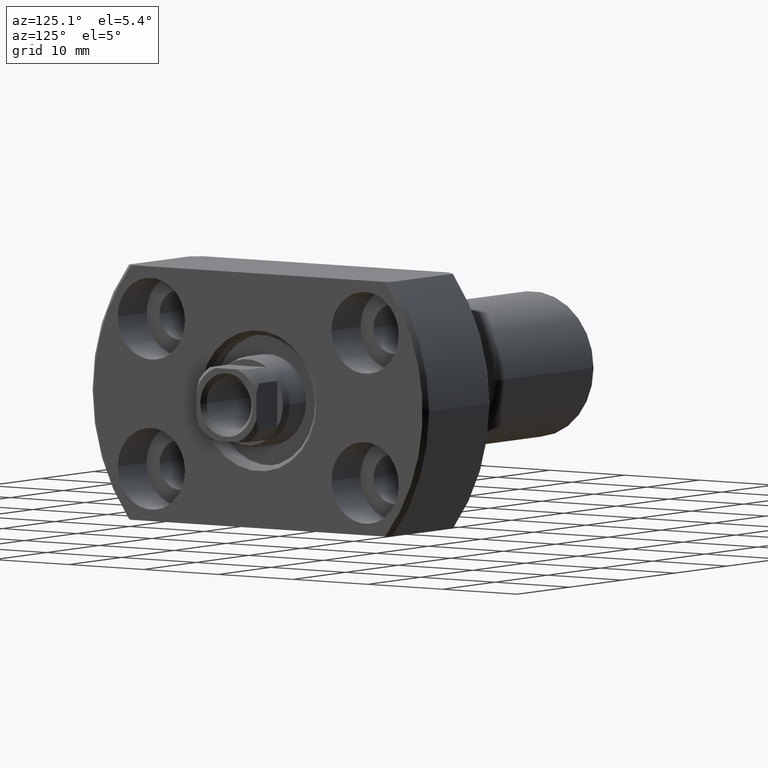
[diagram: clean part render]
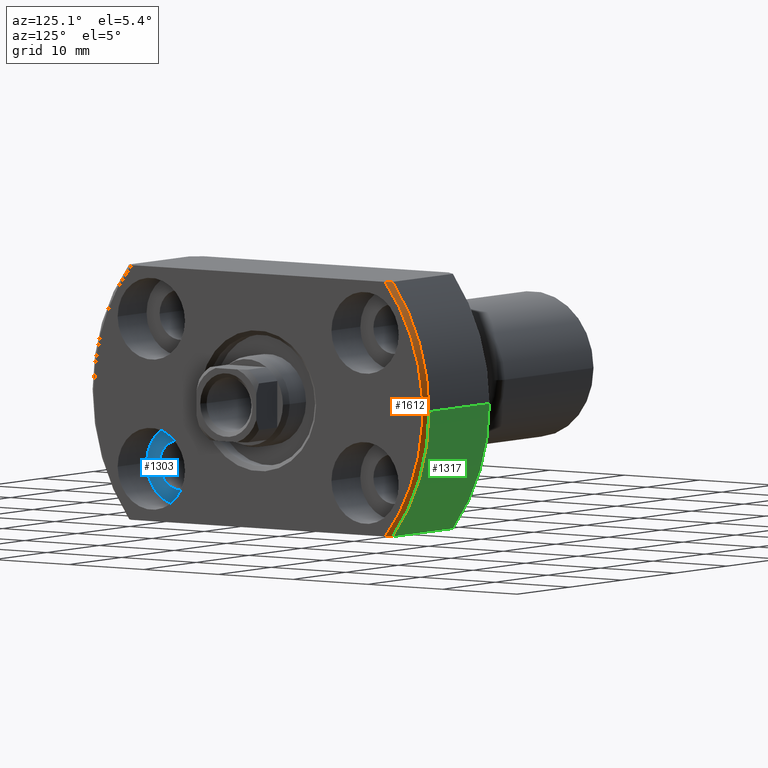
[diagram: same view with three faces highlighted in distinct colors, each labeled with its STEP entity id]
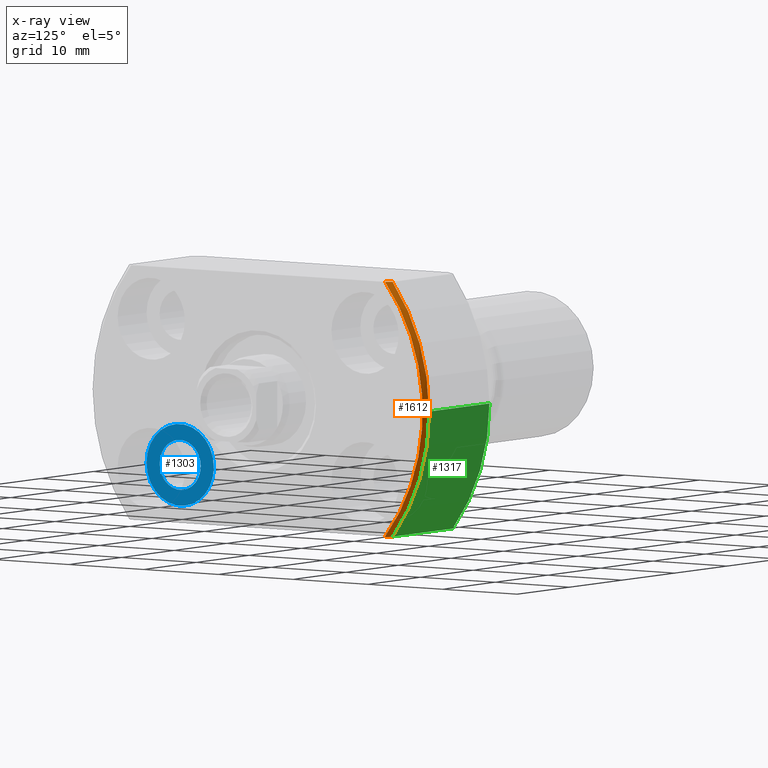
[diagram: x-ray of the same camera — body ghosted, the three highlighted faces saturated]
A machine part, auxiliary view with three faces highlighted in distinct colors.
The next image is the same camera in x-ray (body ghosted, the three faces saturated) — at least one of them is partly hidden behind the body in this view.
Their STEP definitions:

[orange] entity #1612 — the highlighted conical surface has half-angle 45 deg.
#12 = CARTESIAN_POINT ( 'NONE',  ( 24.00000000000008882, 22.49999999999991118, 0.000000000000000000 ) ) ;
#231 = CARTESIAN_POINT ( 'NONE',  ( 24.16739802011472449, 17.40008086510889740, -14.00000000000000355 ) ) ;
#249 = CARTESIAN_POINT ( 'NONE',  ( 24.00000000000008882, 1.199654007330677296E-17, 0.000000000000000000 ) ) ;
#301 = VERTEX_POINT ( 'NONE', #1903 ) ;
#303 = B_SPLINE_CURVE_WITH_KNOTS ( 'NONE', 3,
 ( #2507, #2000, #1772, #1026 ),
 .UNSPECIFIED., .F., .F.,
 ( 4, 4 ),
 ( 0.06706314534022636553, 0.06787700449519981638 ),
 .UNSPECIFIED. ) ;
#358 = ORIENTED_EDGE ( 'NONE', *, *, #2686, .T. ) ;
#557 = DIRECTION ( 'NONE',  ( -1.000000000000000000, -4.998558363877804092E-19, 0.000000000000000000 ) ) ;
#569 = FACE_OUTER_BOUND ( 'NONE', #1768, .T. ) ;
#725 = CARTESIAN_POINT ( 'NONE',  ( 24.33408568434172992, 17.18564783425659925, -14.00000000000000355 ) ) ;
#812 = DIRECTION ( 'NONE',  ( 1.000000000000000000, 4.998558363877804092E-19, -0.000000000000000000 ) ) ;
#994 = ORIENTED_EDGE ( 'NONE', *, *, #2922, .T. ) ;
#997 = DIRECTION ( 'NONE',  ( 1.000000000000000000, 4.998558363877804092E-19, -0.000000000000000000 ) ) ;
#1026 = CARTESIAN_POINT ( 'NONE',  ( 24.00000000000007461, 17.61391495380845029, 13.99999999999999645 ) ) ;
#1070 = AXIS2_PLACEMENT_3D ( 'NONE', #1443, #997, #1474 ) ;
#1206 = CARTESIAN_POINT ( 'NONE',  ( 24.50000000000000000, 16.97056274847713553, 14.00000000000000355 ) ) ;
#1321 = DIRECTION ( 'NONE',  ( 0.000000000000000000, 1.000000000000000000, 0.000000000000000000 ) ) ;
#1424 = EDGE_CURVE ( 'NONE', #2137, #301, #303, .T. ) ;
#1443 = CARTESIAN_POINT ( 'NONE',  ( 24.00000000000008882, 1.199654007330677296E-17, 0.000000000000000000 ) ) ;
#1474 = DIRECTION ( 'NONE',  ( 0.000000000000000000, 1.000000000000000000, 0.000000000000000000 ) ) ;
#1546 = CONICAL_SURFACE ( 'NONE', #2818, 22.49999999999991473, 0.7853981633974518317 ) ;
#1558 = DIRECTION ( 'NONE',  ( 1.000000000000000000, 4.998558363877804092E-19, -0.000000000000000000 ) ) ;
#1612 = ADVANCED_FACE ( 'NONE', ( #569 ), #1546, .T. ) ;
#1638 = CIRCLE ( 'NONE', #1941, 22.00000000000000000 ) ;
#1733 = ORIENTED_EDGE ( 'NONE', *, *, #3104, .T. ) ;
#1768 = EDGE_LOOP ( 'NONE', ( #3146, #2702, #1733, #994, #358 ) ) ;
#1772 = CARTESIAN_POINT ( 'NONE',  ( 24.16739802011472449, 17.40008086510889740, 14.00000000000000355 ) ) ;
#1797 = CIRCLE ( 'NONE', #2778, 22.49999999999991473 ) ;
#1903 = CARTESIAN_POINT ( 'NONE',  ( 24.00000000000007461, 17.61391495380845029, 13.99999999999999645 ) ) ;
#1914 = EDGE_CURVE ( 'NONE', #2900, #2137, #1638, .T. ) ;
#1941 = AXIS2_PLACEMENT_3D ( 'NONE', #3062, #812, #1321 ) ;
#1952 = CIRCLE ( 'NONE', #1070, 22.49999999999991473 ) ;
#2000 = CARTESIAN_POINT ( 'NONE',  ( 24.33408568434172992, 17.18564783425659925, 14.00000000000000355 ) ) ;
#2104 = CARTESIAN_POINT ( 'NONE',  ( 24.00000000000008882, 1.199654007330677296E-17, 0.000000000000000000 ) ) ;
#2137 = VERTEX_POINT ( 'NONE', #1206 ) ;
#2208 = CARTESIAN_POINT ( 'NONE',  ( 24.50000000000000000, 16.97056274847713553, -14.00000000000000355 ) ) ;
#2245 = CARTESIAN_POINT ( 'NONE',  ( 24.50000000000000000, 16.97056274847713553, -14.00000000000000355 ) ) ;
#2385 = VERTEX_POINT ( 'NONE', #12 ) ;
#2492 = B_SPLINE_CURVE_WITH_KNOTS ( 'NONE', 3,
 ( #2208, #725, #231, #2988 ),
 .UNSPECIFIED., .F., .F.,
 ( 4, 4 ),
 ( 0.06706314534022636553, 0.06787700449519981638 ),
 .UNSPECIFIED. ) ;
#2507 = CARTESIAN_POINT ( 'NONE',  ( 24.50000000000000000, 16.97056274847713553, 14.00000000000000355 ) ) ;
#2686 = EDGE_CURVE ( 'NONE', #2385, #301, #1952, .T. ) ;
#2702 = ORIENTED_EDGE ( 'NONE', *, *, #1914, .F. ) ;
#2778 = AXIS2_PLACEMENT_3D ( 'NONE', #249, #1558, #2780 ) ;
#2780 = DIRECTION ( 'NONE',  ( 0.000000000000000000, 1.000000000000000000, 0.000000000000000000 ) ) ;
#2817 = DIRECTION ( 'NONE',  ( 0.000000000000000000, -1.000000000000000000, 0.000000000000000000 ) ) ;
#2818 = AXIS2_PLACEMENT_3D ( 'NONE', #2104, #557, #2817 ) ;
#2900 = VERTEX_POINT ( 'NONE', #2245 ) ;
#2922 = EDGE_CURVE ( 'NONE', #3097, #2385, #1797, .T. ) ;
#2935 = CARTESIAN_POINT ( 'NONE',  ( 24.00000000000007461, 17.61391495380844319, -14.00000000000000355 ) ) ;
#2988 = CARTESIAN_POINT ( 'NONE',  ( 24.00000000000007461, 17.61391495380844319, -14.00000000000000355 ) ) ;
#3062 = CARTESIAN_POINT ( 'NONE',  ( 24.50000000000000000, 1.224646799150062051E-17, 0.000000000000000000 ) ) ;
#3097 = VERTEX_POINT ( 'NONE', #2935 ) ;
#3104 = EDGE_CURVE ( 'NONE', #2900, #3097, #2492, .T. ) ;
#3146 = ORIENTED_EDGE ( 'NONE', *, *, #1424, .F. ) ;

[blue] entity #1303 — the highlighted planar face has unit normal (1, -0, 0).
#196 = ORIENTED_EDGE ( 'NONE', *, *, #989, .T. ) ;
#297 = FACE_OUTER_BOUND ( 'NONE', #2004, .T. ) ;
#315 = EDGE_CURVE ( 'NONE', #419, #500, #893, .T. ) ;
#347 = ORIENTED_EDGE ( 'NONE', *, *, #315, .T. ) ;
#366 = AXIS2_PLACEMENT_3D ( 'NONE', #2380, #1083, #1112 ) ;
#419 = VERTEX_POINT ( 'NONE', #919 ) ;
#440 = VERTEX_POINT ( 'NONE', #3178 ) ;
#443 = EDGE_LOOP ( 'NONE', ( #925, #2264 ) ) ;
#500 = VERTEX_POINT ( 'NONE', #1966 ) ;
#645 = AXIS2_PLACEMENT_3D ( 'NONE', #2227, #1556, #2265 ) ;
#665 = DIRECTION ( 'NONE',  ( 2.852656382717284985E-14, 1.000000000000000000, 0.000000000000000000 ) ) ;
#893 = CIRCLE ( 'NONE', #2712, 4.500000000000206946 ) ;
#919 = CARTESIAN_POINT ( 'NONE',  ( 18.99999999999971578, -9.800000000000341771, -8.250000000000000000 ) ) ;
#925 = ORIENTED_EDGE ( 'NONE', *, *, #1049, .F. ) ;
#933 = DIRECTION ( 'NONE',  ( 1.000000000000000000, -2.889258529047467066E-14, 0.000000000000000000 ) ) ;
#989 = EDGE_CURVE ( 'NONE', #500, #419, #2044, .T. ) ;
#1049 = EDGE_CURVE ( 'NONE', #440, #1491, #2361, .T. ) ;
#1083 = DIRECTION ( 'NONE',  ( 1.000000000000000000, -2.889258529047467066E-14, 0.000000000000000000 ) ) ;
#1112 = DIRECTION ( 'NONE',  ( 2.901719268906659886E-14, 1.000000000000000000, 0.000000000000000000 ) ) ;
#1148 = DIRECTION ( 'NONE',  ( 2.852656382717284985E-14, 1.000000000000000000, 0.000000000000000000 ) ) ;
#1285 = PLANE ( 'NONE',  #645 ) ;
#1303 = ADVANCED_FACE ( 'NONE', ( #2483, #297 ), #1285, .T. ) ;
#1377 = CARTESIAN_POINT ( 'NONE',  ( 18.99999999999959144, -14.30000000000054072, -8.249999999999996447 ) ) ;
#1397 = CARTESIAN_POINT ( 'NONE',  ( 18.99999999999958789, -14.30000000000054783, -8.250000000000000000 ) ) ;
#1411 = DIRECTION ( 'NONE',  ( 2.901719268906659886E-14, 1.000000000000000000, 0.000000000000000000 ) ) ;
#1491 = VERTEX_POINT ( 'NONE', #1982 ) ;
#1556 = DIRECTION ( 'NONE',  ( 1.000000000000000000, -2.889258529047467066E-14, 0.000000000000000000 ) ) ;
#1586 = DIRECTION ( 'NONE',  ( 1.000000000000000000, -2.889258529047467066E-14, 0.000000000000000000 ) ) ;
#1966 = CARTESIAN_POINT ( 'NONE',  ( 18.99999999999945999, -18.80000000000075389, -8.250000000000000000 ) ) ;
#1982 = CARTESIAN_POINT ( 'NONE',  ( 18.99999999999950973, -17.05000000000054072, -8.249999999999996447 ) ) ;
#2004 = EDGE_LOOP ( 'NONE', ( #347, #196 ) ) ;
#2044 = CIRCLE ( 'NONE', #3030, 4.500000000000206946 ) ;
#2118 = CARTESIAN_POINT ( 'NONE',  ( 18.99999999999958789, -14.30000000000054783, -8.250000000000000000 ) ) ;
#2127 = DIRECTION ( 'NONE',  ( 1.000000000000000000, -2.889258529047467066E-14, 0.000000000000000000 ) ) ;
#2227 = CARTESIAN_POINT ( 'NONE',  ( 19.00000000000000355, -5.491127034749801123E-13, 0.000000000000000000 ) ) ;
#2264 = ORIENTED_EDGE ( 'NONE', *, *, #2524, .F. ) ;
#2265 = DIRECTION ( 'NONE',  ( 2.889258529047467066E-14, 1.000000000000000000, 0.000000000000000000 ) ) ;
#2360 = CIRCLE ( 'NONE', #3081, 2.749999999999999112 ) ;
#2361 = CIRCLE ( 'NONE', #366, 2.749999999999999112 ) ;
#2380 = CARTESIAN_POINT ( 'NONE',  ( 18.99999999999959144, -14.30000000000054072, -8.249999999999996447 ) ) ;
#2483 = FACE_BOUND ( 'NONE', #443, .T. ) ;
#2524 = EDGE_CURVE ( 'NONE', #1491, #440, #2360, .T. ) ;
#2712 = AXIS2_PLACEMENT_3D ( 'NONE', #2118, #933, #665 ) ;
#3030 = AXIS2_PLACEMENT_3D ( 'NONE', #1397, #1586, #1148 ) ;
#3081 = AXIS2_PLACEMENT_3D ( 'NONE', #1377, #2127, #1411 ) ;
#3178 = CARTESIAN_POINT ( 'NONE',  ( 18.99999999999966960, -11.55000000000054250, -8.249999999999996447 ) ) ;

[green] entity #1317 — the highlighted cylindrical surface (partial cylindrical patch) has radius 22.5 mm, axis along (1, 0, 0).
#12 = CARTESIAN_POINT ( 'NONE',  ( 24.00000000000008882, 22.49999999999991118, 0.000000000000000000 ) ) ;
#40 = EDGE_CURVE ( 'NONE', #1445, #2385, #1264, .T. ) ;
#232 = DIRECTION ( 'NONE',  ( 1.000000000000000000, 4.998558363877804092E-19, -0.000000000000000000 ) ) ;
#249 = CARTESIAN_POINT ( 'NONE',  ( 24.00000000000008882, 1.199654007330677296E-17, 0.000000000000000000 ) ) ;
#323 = LINE ( 'NONE', #1342, #2917 ) ;
#486 = ORIENTED_EDGE ( 'NONE', *, *, #1150, .T. ) ;
#563 = CARTESIAN_POINT ( 'NONE',  ( 12.49999999999977263, 6.248197954847141582E-18, 0.000000000000000000 ) ) ;
#605 = ORIENTED_EDGE ( 'NONE', *, *, #1625, .F. ) ;
#718 = VERTEX_POINT ( 'NONE', #3105 ) ;
#728 = CARTESIAN_POINT ( 'NONE',  ( 24.50000000000000355, 1.224646799150062205E-17, 0.000000000000000000 ) ) ;
#795 = DIRECTION ( 'NONE',  ( 0.000000000000000000, 1.000000000000000000, 0.000000000000000000 ) ) ;
#899 = CIRCLE ( 'NONE', #2822, 22.49999999999989697 ) ;
#978 = DIRECTION ( 'NONE',  ( 1.000000000000000000, 4.998558363877804092E-19, -0.000000000000000000 ) ) ;
#999 = ORIENTED_EDGE ( 'NONE', *, *, #40, .T. ) ;
#1031 = CARTESIAN_POINT ( 'NONE',  ( 24.50000000000000355, 22.49999999999990763, 0.000000000000000000 ) ) ;
#1044 = CYLINDRICAL_SURFACE ( 'NONE', #2204, 22.49999999999990763 ) ;
#1076 = DIRECTION ( 'NONE',  ( 1.000000000000000000, -2.886466111666351885E-14, -0.000000000000000000 ) ) ;
#1150 = EDGE_CURVE ( 'NONE', #718, #1445, #899, .T. ) ;
#1177 = ORIENTED_EDGE ( 'NONE', *, *, #2922, .F. ) ;
#1264 = LINE ( 'NONE', #1031, #3181 ) ;
#1317 = ADVANCED_FACE ( 'NONE', ( #2282 ), #1044, .T. ) ;
#1342 = CARTESIAN_POINT ( 'NONE',  ( -1.422473250300981817E-13, 17.61391495380913597, -14.00000000000000355 ) ) ;
#1445 = VERTEX_POINT ( 'NONE', #2016 ) ;
#1558 = DIRECTION ( 'NONE',  ( 1.000000000000000000, 4.998558363877804092E-19, -0.000000000000000000 ) ) ;
#1625 = EDGE_CURVE ( 'NONE', #718, #3097, #323, .T. ) ;
#1797 = CIRCLE ( 'NONE', #2778, 22.49999999999991473 ) ;
#1815 = DIRECTION ( 'NONE',  ( 1.000000000000000000, 4.998558363877804092E-19, -0.000000000000000000 ) ) ;
#2016 = CARTESIAN_POINT ( 'NONE',  ( 12.49999999999977263, 22.49999999999989697, 0.000000000000000000 ) ) ;
#2204 = AXIS2_PLACEMENT_3D ( 'NONE', #728, #978, #795 ) ;
#2282 = FACE_OUTER_BOUND ( 'NONE', #2435, .T. ) ;
#2385 = VERTEX_POINT ( 'NONE', #12 ) ;
#2435 = EDGE_LOOP ( 'NONE', ( #486, #999, #1177, #605 ) ) ;
#2778 = AXIS2_PLACEMENT_3D ( 'NONE', #249, #1558, #2780 ) ;
#2780 = DIRECTION ( 'NONE',  ( 0.000000000000000000, 1.000000000000000000, 0.000000000000000000 ) ) ;
#2796 = DIRECTION ( 'NONE',  ( 0.000000000000000000, 1.000000000000000000, 0.000000000000000000 ) ) ;
#2822 = AXIS2_PLACEMENT_3D ( 'NONE', #563, #1815, #2796 ) ;
#2917 = VECTOR ( 'NONE', #1076, 1000.000000000000000 ) ;
#2922 = EDGE_CURVE ( 'NONE', #3097, #2385, #1797, .T. ) ;
#2935 = CARTESIAN_POINT ( 'NONE',  ( 24.00000000000007461, 17.61391495380844319, -14.00000000000000355 ) ) ;
#3097 = VERTEX_POINT ( 'NONE', #2935 ) ;
#3105 = CARTESIAN_POINT ( 'NONE',  ( 12.49999999999977263, 17.61391495380877714, -14.00000000000000355 ) ) ;
#3181 = VECTOR ( 'NONE', #232, 1000.000000000000000 ) ;